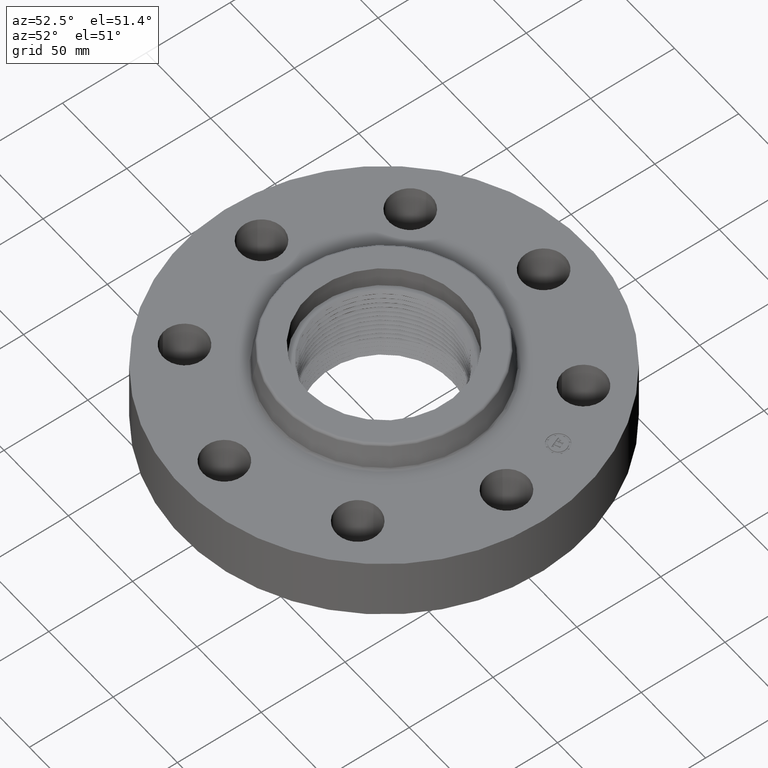
[diagram: clean part render]
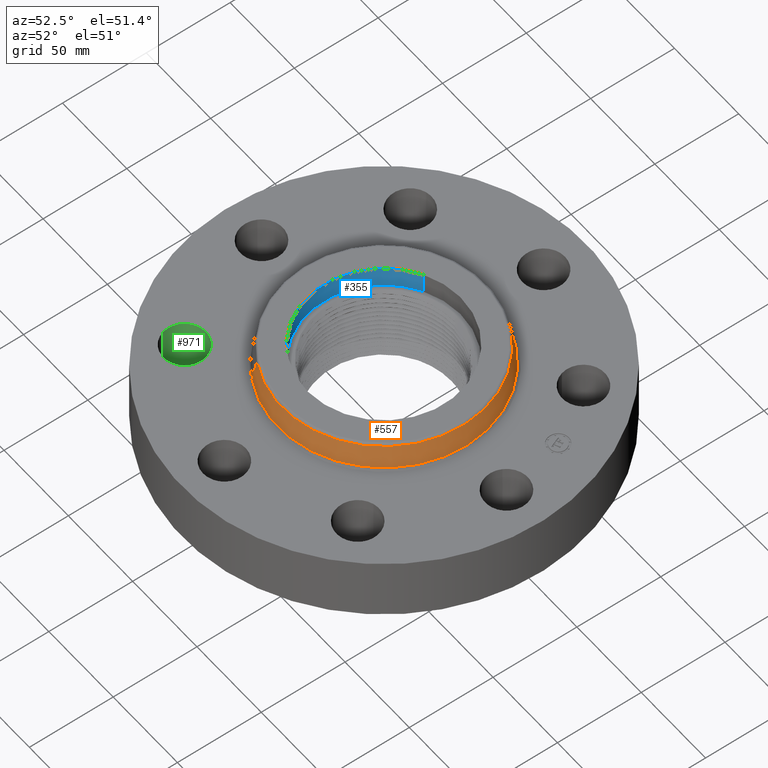
[diagram: same view with three faces highlighted in distinct colors, each labeled with its STEP entity id]
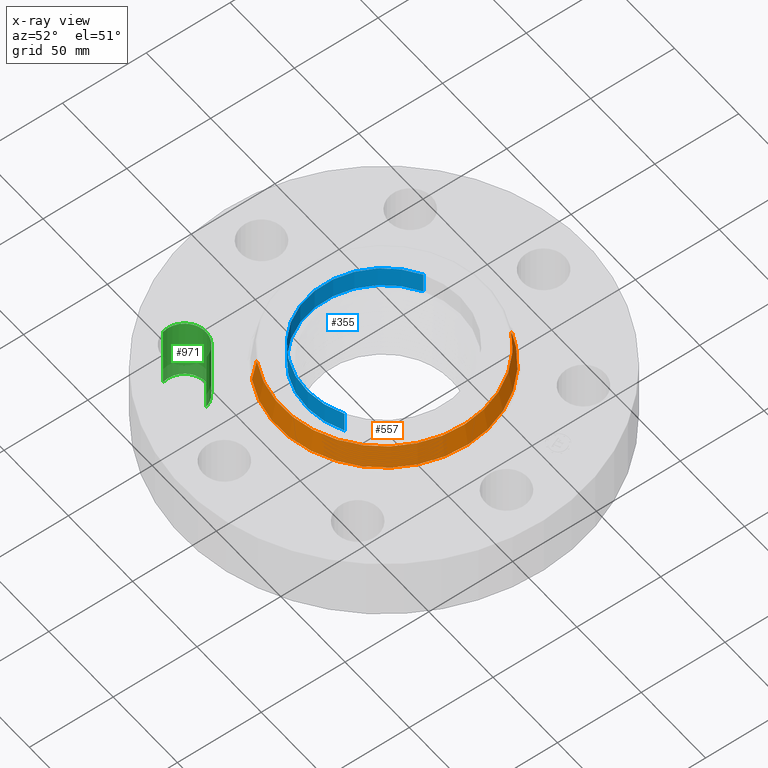
[diagram: x-ray of the same camera — body ghosted, the three highlighted faces saturated]
A machine part, auxiliary view with three faces highlighted in distinct colors.
The next image is the same camera in x-ray (body ghosted, the three faces saturated) — at least one of them is partly hidden behind the body in this view.
Their STEP definitions:

[orange] entity #557 — the highlighted conical surface has half-angle 10 deg.
#493=AXIS2_PLACEMENT_3D('Circle Axis2P3D',#491,#492,$) ;
#530=AXIS2_PLACEMENT_3D('Cone Axis2P3D',#527,#528,#529) ;
#541=AXIS2_PLACEMENT_3D('Circle Axis2P3D',#539,#540,$) ;
#488=CARTESIAN_POINT('Vertex',(1.19437247483,2.18628415032,1.54958110935)) ;
#491=CARTESIAN_POINT('Axis2P3D Location',(0.,0.,1.54958110935)) ;
#495=CARTESIAN_POINT('Vertex',(-1.19437247483,-2.18628415032,1.54958110935)) ;
#527=CARTESIAN_POINT('Axis2P3D Location',(0.,0.,2.07041889067)) ;
#532=CARTESIAN_POINT('Line Origine',(1.17235779263,2.14598654486,1.81000000001)) ;
#536=CARTESIAN_POINT('Vertex',(1.15034311043,2.1056889394,2.07041889067)) ;
#539=CARTESIAN_POINT('Axis2P3D Location',(0.,0.,2.07041889067)) ;
#543=CARTESIAN_POINT('Vertex',(-1.15034311043,-2.1056889394,2.07041889067)) ;
#546=CARTESIAN_POINT('Line Origine',(-1.17235779263,-2.14598654486,1.81000000001)) ;
#492=DIRECTION('Axis2P3D Direction',(0.,0.,-0.0393700787402)) ;
#528=DIRECTION('Axis2P3D Direction',(0.,0.,-0.0393700787402)) ;
#529=DIRECTION('Axis2P3D XDirection',(-0.0188750212049,-0.0345504945626,0.)) ;
#533=DIRECTION('Vector Direction',(0.00327761303565,0.00599963041829,-0.03877195878)) ;
#540=DIRECTION('Axis2P3D Direction',(0.,0.,-0.0393700787402)) ;
#547=DIRECTION('Vector Direction',(-0.00327761303565,-0.00599963041829,-0.03877195878)) ;
#534=VECTOR('Line Direction',#533,0.0393700787402) ;
#548=VECTOR('Line Direction',#547,0.0393700787402) ;
#552=ORIENTED_EDGE('',*,*,#497,.F.) ;
#553=ORIENTED_EDGE('',*,*,#538,.T.) ;
#554=ORIENTED_EDGE('',*,*,#545,.T.) ;
#555=ORIENTED_EDGE('',*,*,#550,.F.) ;
#557=ADVANCED_FACE('PartBody',(#556),#531,.T.) ;
#494=CIRCLE('generated circle',#493,2.4912575127) ;
#542=CIRCLE('generated circle',#541,2.39941975928) ;
#531=CONICAL_SURFACE('Cone',#530,2.39941975928,0.174532925199) ;
#497=EDGE_CURVE('',#489,#496,#494,.T.) ;
#538=EDGE_CURVE('',#489,#537,#535,.F.) ;
#545=EDGE_CURVE('',#537,#544,#542,.T.) ;
#550=EDGE_CURVE('',#496,#544,#549,.F.) ;
#551=EDGE_LOOP('',(#552,#553,#554,#555)) ;
#556=FACE_OUTER_BOUND('',#551,.T.) ;
#535=LINE('Line',#532,#534) ;
#549=LINE('Line',#546,#548) ;
#489=VERTEX_POINT('',#488) ;
#496=VERTEX_POINT('',#495) ;
#537=VERTEX_POINT('',#536) ;
#544=VERTEX_POINT('',#543) ;

[blue] entity #355 — the highlighted cylindrical surface (partial cylindrical patch) has radius 46.101 mm, axis along (0, 0, 1).
#42=AXIS2_PLACEMENT_3D('Circle Axis2P3D',#40,#41,$) ;
#316=AXIS2_PLACEMENT_3D('Cylinder Axis2P3D',#313,#314,#315) ;
#346=AXIS2_PLACEMENT_3D('Circle Axis2P3D',#344,#345,$) ;
#40=CARTESIAN_POINT('Axis2P3D Location',(0.,0.,1.62000000001)) ;
#44=CARTESIAN_POINT('Vertex',(-0.87015735257,1.59281234984,1.62000000001)) ;
#46=CARTESIAN_POINT('Vertex',(0.87015735257,-1.59281234984,1.62000000001)) ;
#313=CARTESIAN_POINT('Axis2P3D Location',(0.,0.,1.62000000001)) ;
#322=CARTESIAN_POINT('Vertex',(-0.87015735257,1.59281234984,2.12000000001)) ;
#324=CARTESIAN_POINT('Vertex',(0.87015735257,-1.59281234984,2.12000000001)) ;
#327=CARTESIAN_POINT('Line Origine',(-0.87015735257,1.59281234984,1.87000000001)) ;
#332=CARTESIAN_POINT('Line Origine',(0.87015735257,-1.59281234984,1.87000000001)) ;
#344=CARTESIAN_POINT('Axis2P3D Location',(0.,0.,2.12000000001)) ;
#41=DIRECTION('Axis2P3D Direction',(0.,0.,0.0393700787402)) ;
#314=DIRECTION('Axis2P3D Direction',(0.,0.,0.0393700787402)) ;
#315=DIRECTION('Axis2P3D XDirection',(-0.0188750212049,0.0345504945626,0.)) ;
#328=DIRECTION('Vector Direction',(0.,0.,0.0393700787402)) ;
#333=DIRECTION('Vector Direction',(0.,0.,0.0393700787402)) ;
#345=DIRECTION('Axis2P3D Direction',(0.,0.,0.0393700787402)) ;
#329=VECTOR('Line Direction',#328,0.0393700787402) ;
#334=VECTOR('Line Direction',#333,0.0393700787402) ;
#350=ORIENTED_EDGE('',*,*,#348,.F.) ;
#351=ORIENTED_EDGE('',*,*,#336,.F.) ;
#352=ORIENTED_EDGE('',*,*,#48,.F.) ;
#353=ORIENTED_EDGE('',*,*,#331,.T.) ;
#355=ADVANCED_FACE('PartBody',(#354),#317,.F.) ;
#43=CIRCLE('generated circle',#42,1.81500000001) ;
#347=CIRCLE('generated circle',#346,1.81500000001) ;
#317=CYLINDRICAL_SURFACE('generated cylinder',#316,1.81500000001) ;
#48=EDGE_CURVE('',#45,#47,#43,.T.) ;
#331=EDGE_CURVE('',#45,#323,#330,.T.) ;
#336=EDGE_CURVE('',#47,#325,#335,.T.) ;
#348=EDGE_CURVE('',#325,#323,#347,.F.) ;
#349=EDGE_LOOP('',(#350,#351,#352,#353)) ;
#354=FACE_OUTER_BOUND('',#349,.T.) ;
#330=LINE('Line',#327,#329) ;
#335=LINE('Line',#332,#334) ;
#45=VERTEX_POINT('',#44) ;
#47=VERTEX_POINT('',#46) ;
#323=VERTEX_POINT('',#322) ;
#325=VERTEX_POINT('',#324) ;

[green] entity #971 — the highlighted cylindrical surface (edge-blend (fillet) strip) has radius 12.7 mm, axis along (-0, 0, -1).
#720=AXIS2_PLACEMENT_3D('Circle Axis2P3D',#718,#719,$) ;
#932=AXIS2_PLACEMENT_3D('Cylinder Axis2P3D',#929,#930,#931) ;
#962=AXIS2_PLACEMENT_3D('Circle Axis2P3D',#960,#961,$) ;
#713=CARTESIAN_POINT('Vertex',(-2.17187561447,-2.51088066389,0.)) ;
#715=CARTESIAN_POINT('Vertex',(-3.13142524445,-2.79242019503,0.)) ;
#718=CARTESIAN_POINT('Axis2P3D Location',(-2.65165042946,-2.65165042946,0.)) ;
#929=CARTESIAN_POINT('Axis2P3D Location',(-2.65165042946,-2.65165042946,1.49606299213)) ;
#934=CARTESIAN_POINT('Line Origine',(-2.17187561447,-2.51088066389,0.750000000003)) ;
#938=CARTESIAN_POINT('Vertex',(-2.17187561447,-2.51088066389,1.50000000001)) ;
#941=CARTESIAN_POINT('Line Origine',(-3.13142524445,-2.79242019503,0.750000000003)) ;
#945=CARTESIAN_POINT('Vertex',(-3.13142524445,-2.79242019503,1.50000000001)) ;
#960=CARTESIAN_POINT('Axis2P3D Location',(-2.65165042946,-2.65165042946,1.50000000001)) ;
#719=DIRECTION('Axis2P3D Direction',(0.,0.,-0.0393700787402)) ;
#930=DIRECTION('Axis2P3D Direction',(-0.,0.,-0.0393700787402)) ;
#931=DIRECTION('Axis2P3D XDirection',(-0.0377775444876,-0.0110842335096,0.)) ;
#935=DIRECTION('Vector Direction',(0.,0.,-0.0393700787402)) ;
#942=DIRECTION('Vector Direction',(0.,0.,-0.0393700787402)) ;
#961=DIRECTION('Axis2P3D Direction',(-0.,0.,-0.0393700787402)) ;
#936=VECTOR('Line Direction',#935,0.0393700787402) ;
#943=VECTOR('Line Direction',#942,0.0393700787402) ;
#966=ORIENTED_EDGE('',*,*,#947,.F.) ;
#967=ORIENTED_EDGE('',*,*,#722,.T.) ;
#968=ORIENTED_EDGE('',*,*,#940,.T.) ;
#969=ORIENTED_EDGE('',*,*,#964,.F.) ;
#971=ADVANCED_FACE('PartBody',(#970),#933,.F.) ;
#721=CIRCLE('generated circle',#720,0.500000000002) ;
#963=CIRCLE('generated circle',#962,0.500000000002) ;
#933=CYLINDRICAL_SURFACE('generated cylinder',#932,0.500000000002) ;
#722=EDGE_CURVE('',#716,#714,#721,.T.) ;
#940=EDGE_CURVE('',#714,#939,#937,.F.) ;
#947=EDGE_CURVE('',#716,#946,#944,.F.) ;
#964=EDGE_CURVE('',#946,#939,#963,.T.) ;
#965=EDGE_LOOP('',(#966,#967,#968,#969)) ;
#970=FACE_OUTER_BOUND('',#965,.T.) ;
#937=LINE('Line',#934,#936) ;
#944=LINE('Line',#941,#943) ;
#714=VERTEX_POINT('',#713) ;
#716=VERTEX_POINT('',#715) ;
#939=VERTEX_POINT('',#938) ;
#946=VERTEX_POINT('',#945) ;